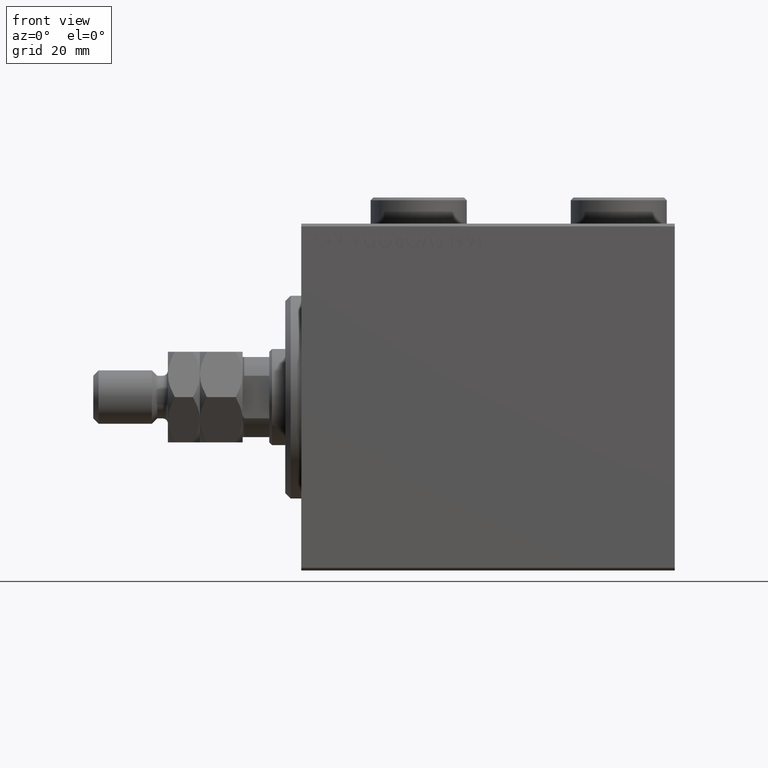
[diagram: clean part render]
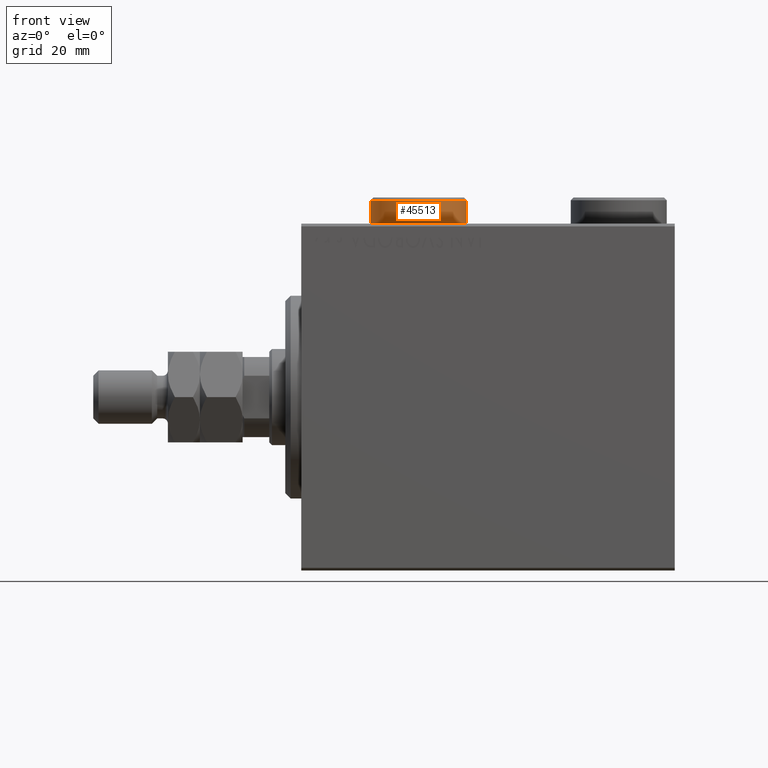
[diagram: same view with one face highlighted and labeled with its STEP entity id]
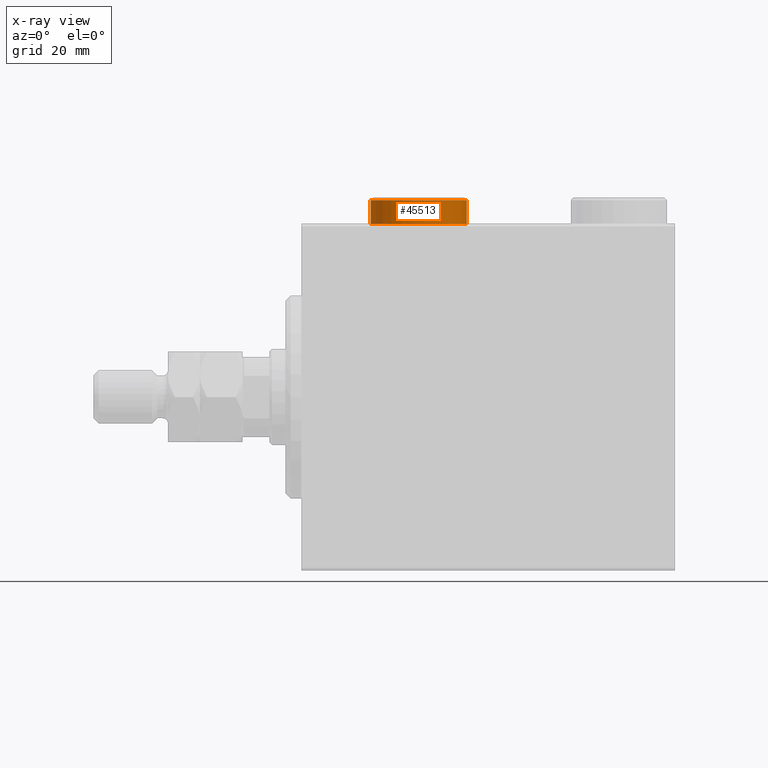
[diagram: x-ray of the same camera — body ghosted, the highlighted face saturated]
A machine part, front view. The second image highlights one B-rep face of the part: STEP entity #45513.
The next image is the same camera in x-ray: the body ghosted, the highlighted face saturated — about 1% of this face is hidden behind the body in this view.
In plain terms, the highlighted cylindrical surface (partial cylindrical patch) has radius 9 mm, axis along (-0, -0, -1).
Its self-contained STEP definition (entity closure, byte-faithful):
#200 = DIRECTION ( 'NONE',  ( 1.000000000000000000, 0.000000000000000000, 0.000000000000000000 ) ) ;
#341 = DIRECTION ( 'NONE',  ( 1.000000000000000000, 0.000000000000000000, 0.000000000000000000 ) ) ;
#593 = EDGE_CURVE ( 'NONE', #44800, #6693, #39226, .T. ) ;
#1085 = VECTOR ( 'NONE', #42530, 1000.000000000000000 ) ;
#6693 = VERTEX_POINT ( 'NONE', #15293 ) ;
#7753 = ORIENTED_EDGE ( 'NONE', *, *, #41469, .T. ) ;
#7754 = DIRECTION ( 'NONE',  ( 0.000000000000000000, 0.000000000000000000, 1.000000000000000000 ) ) ;
#9883 = VERTEX_POINT ( 'NONE', #46554 ) ;
#10785 = CARTESIAN_POINT ( 'NONE',  ( 9.000000000000001776, 1.102182119232617911E-15, 0.000000000000000000 ) ) ;
#12149 = DIRECTION ( 'NONE',  ( -0.000000000000000000, -0.000000000000000000, -1.000000000000000000 ) ) ;
#12376 = AXIS2_PLACEMENT_3D ( 'NONE', #15976, #12149, #37646 ) ;
#13176 = LINE ( 'NONE', #42229, #35690 ) ;
#13402 = DIRECTION ( 'NONE',  ( -0.000000000000000000, -0.000000000000000000, -1.000000000000000000 ) ) ;
#14799 = ORIENTED_EDGE ( 'NONE', *, *, #30671, .T. ) ;
#15165 = VERTEX_POINT ( 'NONE', #10785 ) ;
#15293 = CARTESIAN_POINT ( 'NONE',  ( -9.000000000000001776, 0.000000000000000000, 4.500000000000006217 ) ) ;
#15976 = CARTESIAN_POINT ( 'NONE',  ( 0.000000000000000000, 0.000000000000000000, 5.000000000000000000 ) ) ;
#16907 = EDGE_CURVE ( 'NONE', #44800, #15165, #42297, .T. ) ;
#19071 = DIRECTION ( 'NONE',  ( 0.000000000000000000, 0.000000000000000000, -1.000000000000000000 ) ) ;
#20495 = CARTESIAN_POINT ( 'NONE',  ( 9.000000000000001776, 1.102182119232617911E-15, 4.500000000000006217 ) ) ;
#21597 = EDGE_LOOP ( 'NONE', ( #36397, #43853, #14799, #7753 ) ) ;
#23362 = CYLINDRICAL_SURFACE ( 'NONE', #12376, 9.000000000000001776 ) ;
#25137 = CARTESIAN_POINT ( 'NONE',  ( 9.000000000000001776, 1.102182119232617911E-15, 5.000000000000000000 ) ) ;
#30671 = EDGE_CURVE ( 'NONE', #6693, #9883, #13176, .T. ) ;
#32888 = CIRCLE ( 'NONE', #45067, 9.000000000000001776 ) ;
#33121 = CARTESIAN_POINT ( 'NONE',  ( 0.000000000000000000, 0.000000000000000000, 4.500000000000006217 ) ) ;
#35690 = VECTOR ( 'NONE', #13402, 1000.000000000000000 ) ;
#36397 = ORIENTED_EDGE ( 'NONE', *, *, #16907, .F. ) ;
#37646 = DIRECTION ( 'NONE',  ( -1.000000000000000000, 0.000000000000000000, 0.000000000000000000 ) ) ;
#39226 = CIRCLE ( 'NONE', #40654, 9.000000000000001776 ) ;
#40165 = CARTESIAN_POINT ( 'NONE',  ( 0.000000000000000000, 0.000000000000000000, 0.000000000000000000 ) ) ;
#40654 = AXIS2_PLACEMENT_3D ( 'NONE', #33121, #19071, #200 ) ;
#41469 = EDGE_CURVE ( 'NONE', #9883, #15165, #32888, .T. ) ;
#42229 = CARTESIAN_POINT ( 'NONE',  ( -9.000000000000001776, 0.000000000000000000, 5.000000000000000000 ) ) ;
#42297 = LINE ( 'NONE', #25137, #1085 ) ;
#42530 = DIRECTION ( 'NONE',  ( -0.000000000000000000, -0.000000000000000000, -1.000000000000000000 ) ) ;
#43853 = ORIENTED_EDGE ( 'NONE', *, *, #593, .T. ) ;
#44784 = FACE_OUTER_BOUND ( 'NONE', #21597, .T. ) ;
#44800 = VERTEX_POINT ( 'NONE', #20495 ) ;
#45067 = AXIS2_PLACEMENT_3D ( 'NONE', #40165, #7754, #341 ) ;
#45513 = ADVANCED_FACE ( 'NONE', ( #44784 ), #23362, .T. ) ;
#46554 = CARTESIAN_POINT ( 'NONE',  ( -9.000000000000001776, 0.000000000000000000, 0.000000000000000000 ) ) ;